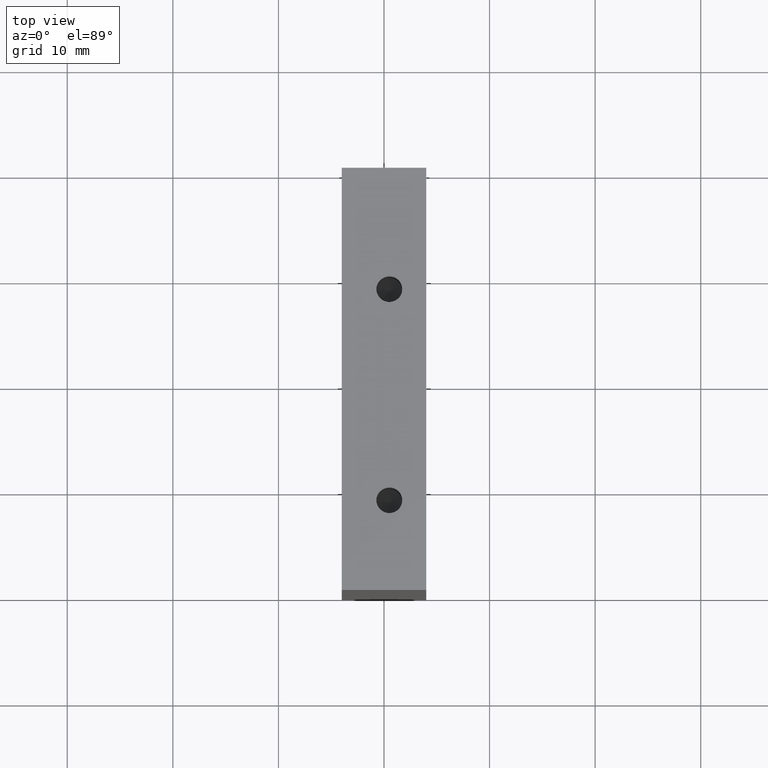
[diagram: clean part render]
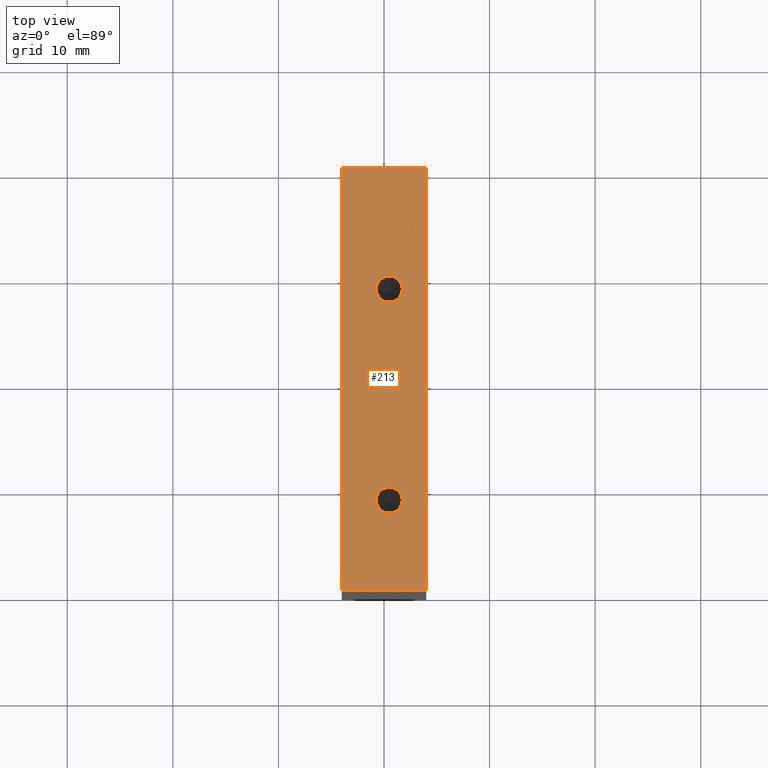
[diagram: same view with one face highlighted and labeled with its STEP entity id]
A machine part, top view. The second image highlights one B-rep face of the part: STEP entity #213.
In plain terms, the highlighted planar face has unit normal (0, 0, 1).
Its self-contained STEP definition (entity closure, byte-faithful):
#24=FACE_BOUND('',#83,.T.);
#25=FACE_BOUND('',#84,.T.);
#32=CIRCLE('',#227,1.2295);
#34=CIRCLE('',#231,1.2295);
#58=FACE_OUTER_BOUND('',#82,.T.);
#82=EDGE_LOOP('',(#184,#185,#186,#187));
#83=EDGE_LOOP('',(#188));
#84=EDGE_LOOP('',(#189));
#86=LINE('',#316,#98);
#91=LINE('',#355,#103);
#96=LINE('',#364,#108);
#97=LINE('',#366,#109);
#98=VECTOR('',#252,10.);
#103=VECTOR('',#297,10.);
#108=VECTOR('',#306,10.);
#109=VECTOR('',#309,10.);
#110=VERTEX_POINT('',#314);
#111=VERTEX_POINT('',#315);
#115=VERTEX_POINT('',#326);
#117=VERTEX_POINT('',#332);
#125=VERTEX_POINT('',#353);
#127=VERTEX_POINT('',#362);
#128=EDGE_CURVE('',#110,#111,#86,.T.);
#133=EDGE_CURVE('',#115,#115,#32,.T.);
#135=EDGE_CURVE('',#117,#117,#34,.T.);
#143=EDGE_CURVE('',#125,#110,#91,.T.);
#148=EDGE_CURVE('',#127,#111,#96,.T.);
#149=EDGE_CURVE('',#125,#127,#97,.T.);
#184=ORIENTED_EDGE('',*,*,#149,.T.);
#185=ORIENTED_EDGE('',*,*,#148,.T.);
#186=ORIENTED_EDGE('',*,*,#128,.F.);
#187=ORIENTED_EDGE('',*,*,#143,.F.);
#188=ORIENTED_EDGE('',*,*,#133,.T.);
#189=ORIENTED_EDGE('',*,*,#135,.T.);
#198=PLANE('',#246);
#213=ADVANCED_FACE('',(#58,#24,#25),#198,.T.);
#227=AXIS2_PLACEMENT_3D('',#327,#262,#263);
#231=AXIS2_PLACEMENT_3D('',#333,#270,#271);
#246=AXIS2_PLACEMENT_3D('',#365,#307,#308);
#252=DIRECTION('',(1.,0.,0.));
#262=DIRECTION('center_axis',(0.,0.,-1.));
#263=DIRECTION('ref_axis',(-1.,0.,0.));
#270=DIRECTION('center_axis',(0.,0.,-1.));
#271=DIRECTION('ref_axis',(-1.,0.,0.));
#297=DIRECTION('',(0.,1.,0.));
#306=DIRECTION('',(0.,1.,0.));
#307=DIRECTION('center_axis',(0.,0.,1.));
#308=DIRECTION('ref_axis',(1.,0.,0.));
#309=DIRECTION('',(1.,0.,0.));
#314=CARTESIAN_POINT('',(-4.,40.,28.));
#315=CARTESIAN_POINT('',(4.,40.,28.));
#316=CARTESIAN_POINT('',(-4.,40.,28.));
#326=CARTESIAN_POINT('',(-0.729500000000005,28.5,28.));
#327=CARTESIAN_POINT('Origin',(0.499999999999995,28.5,28.));
#332=CARTESIAN_POINT('',(-0.729500000000007,8.5,28.));
#333=CARTESIAN_POINT('Origin',(0.499999999999993,8.5,28.));
#353=CARTESIAN_POINT('',(-4.,0.,28.));
#355=CARTESIAN_POINT('',(-4.,0.,28.));
#362=CARTESIAN_POINT('',(4.,0.,28.));
#364=CARTESIAN_POINT('',(4.,0.,28.));
#365=CARTESIAN_POINT('Origin',(-4.,0.,28.));
#366=CARTESIAN_POINT('',(-4.,0.,28.));